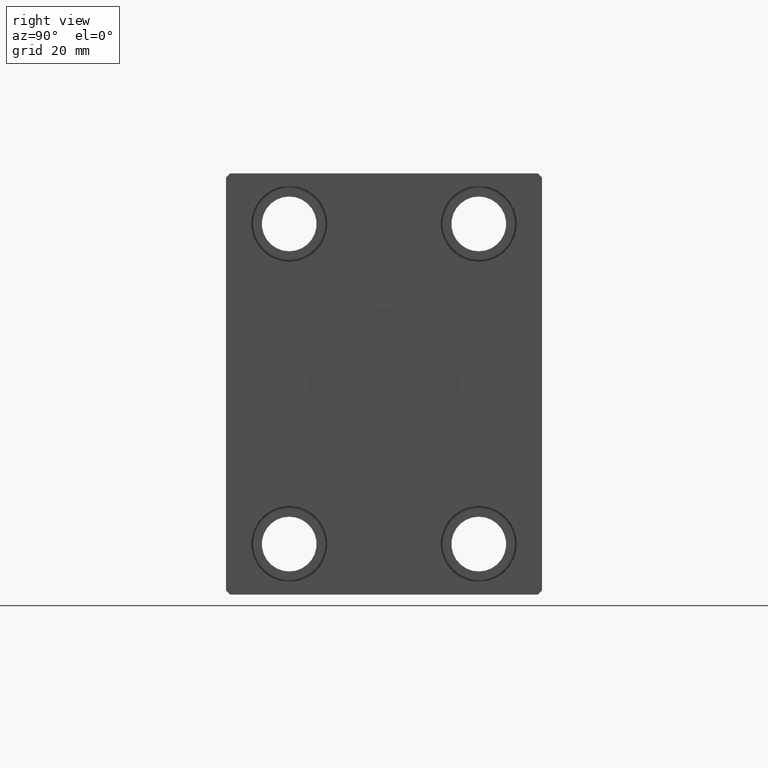
[diagram: clean part render]
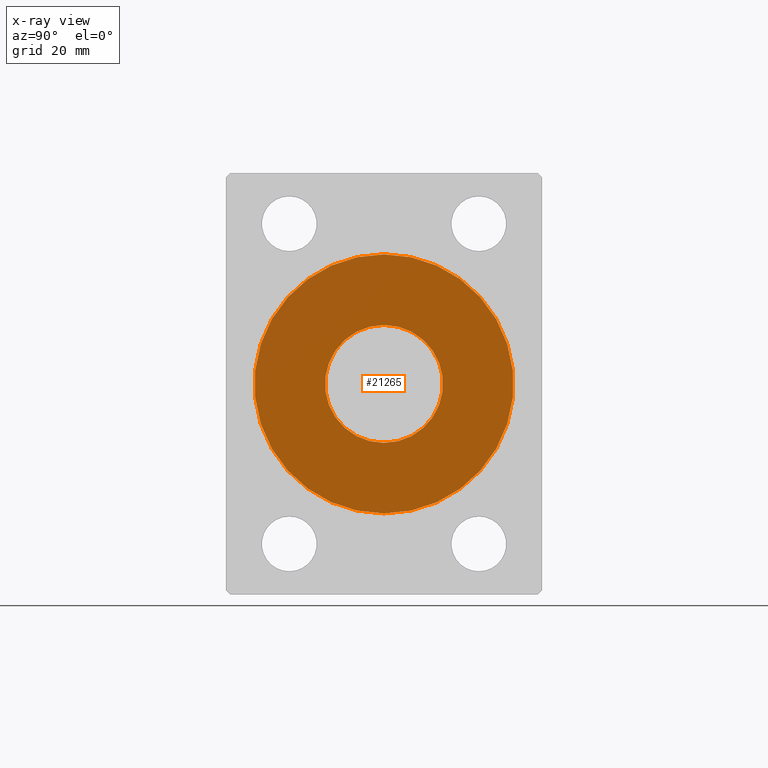
[diagram: x-ray — body ghosted, one internal face saturated and labeled with its STEP entity id]
A machine part, right view, then the same camera in x-ray: the body is ghosted and one INTERNAL B-rep face — a face not visible from any outside direction — is saturated and labeled: STEP entity #21265.
In plain terms, the highlighted planar face has unit normal (-1, 0, 0).
Its self-contained STEP definition (entity closure, byte-faithful):
#627 = CARTESIAN_POINT ( 'NONE',  ( -14.00000000000000000, 0.000000000000000000, 0.000000000000000000 ) ) ;
#1110 = FACE_OUTER_BOUND ( 'NONE', #41743, .T. ) ;
#2276 = CARTESIAN_POINT ( 'NONE',  ( 0.000000000000000000, 0.000000000000000000, 0.000000000000000000 ) ) ;
#2524 = CIRCLE ( 'NONE', #24773, 30.75000000000000355 ) ;
#3286 = DIRECTION ( 'NONE',  ( 1.000000000000000000, 0.000000000000000000, 0.000000000000000000 ) ) ;
#5090 = CARTESIAN_POINT ( 'NONE',  ( 14.00000000000000000, 1.714505518806294638E-15, 0.000000000000000000 ) ) ;
#10379 = ORIENTED_EDGE ( 'NONE', *, *, #41407, .F. ) ;
#12334 = DIRECTION ( 'NONE',  ( 1.000000000000000000, 0.000000000000000000, 0.000000000000000000 ) ) ;
#12483 = AXIS2_PLACEMENT_3D ( 'NONE', #29609, #43333, #12490 ) ;
#12490 = DIRECTION ( 'NONE',  ( 1.000000000000000000, 0.000000000000000000, 0.000000000000000000 ) ) ;
#12534 = EDGE_CURVE ( 'NONE', #17136, #15591, #21742, .T. ) ;
#15591 = VERTEX_POINT ( 'NONE', #5090 ) ;
#15627 = EDGE_CURVE ( 'NONE', #31195, #44099, #22548, .T. ) ;
#16135 = AXIS2_PLACEMENT_3D ( 'NONE', #18423, #28571, #25175 ) ;
#17136 = VERTEX_POINT ( 'NONE', #627 ) ;
#18423 = CARTESIAN_POINT ( 'NONE',  ( 0.000000000000000000, 0.000000000000000000, 0.000000000000000000 ) ) ;
#18442 = ORIENTED_EDGE ( 'NONE', *, *, #21262, .T. ) ;
#19872 = ORIENTED_EDGE ( 'NONE', *, *, #15627, .F. ) ;
#20415 = CARTESIAN_POINT ( 'NONE',  ( -30.75000000000000355, 0.000000000000000000, 0.000000000000000000 ) ) ;
#21262 = EDGE_CURVE ( 'NONE', #15591, #17136, #22603, .T. ) ;
#21265 = ADVANCED_FACE ( 'NONE', ( #1110, #26059 ), #29014, .F. ) ;
#21742 = CIRCLE ( 'NONE', #31815, 14.00000000000000000 ) ;
#22548 = CIRCLE ( 'NONE', #12483, 30.75000000000000355 ) ;
#22603 = CIRCLE ( 'NONE', #34133, 14.00000000000000000 ) ;
#22871 = CARTESIAN_POINT ( 'NONE',  ( 0.000000000000000000, 0.000000000000000000, 0.000000000000000000 ) ) ;
#23178 = DIRECTION ( 'NONE',  ( 1.000000000000000000, 0.000000000000000000, 0.000000000000000000 ) ) ;
#24330 = ORIENTED_EDGE ( 'NONE', *, *, #12534, .T. ) ;
#24642 = EDGE_LOOP ( 'NONE', ( #24330, #18442 ) ) ;
#24773 = AXIS2_PLACEMENT_3D ( 'NONE', #2276, #43679, #23178 ) ;
#25175 = DIRECTION ( 'NONE',  ( 1.000000000000000000, 0.000000000000000000, -0.000000000000000000 ) ) ;
#26059 = FACE_BOUND ( 'NONE', #24642, .T. ) ;
#28571 = DIRECTION ( 'NONE',  ( 0.000000000000000000, 0.000000000000000000, 1.000000000000000000 ) ) ;
#29014 = PLANE ( 'NONE',  #16135 ) ;
#29609 = CARTESIAN_POINT ( 'NONE',  ( 0.000000000000000000, 0.000000000000000000, 0.000000000000000000 ) ) ;
#31195 = VERTEX_POINT ( 'NONE', #20415 ) ;
#31815 = AXIS2_PLACEMENT_3D ( 'NONE', #22871, #33243, #3286 ) ;
#33243 = DIRECTION ( 'NONE',  ( -0.000000000000000000, 0.000000000000000000, 1.000000000000000000 ) ) ;
#34133 = AXIS2_PLACEMENT_3D ( 'NONE', #42735, #42963, #12334 ) ;
#41407 = EDGE_CURVE ( 'NONE', #44099, #31195, #2524, .T. ) ;
#41743 = EDGE_LOOP ( 'NONE', ( #19872, #10379 ) ) ;
#42735 = CARTESIAN_POINT ( 'NONE',  ( 0.000000000000000000, 0.000000000000000000, 0.000000000000000000 ) ) ;
#42963 = DIRECTION ( 'NONE',  ( -0.000000000000000000, 0.000000000000000000, 1.000000000000000000 ) ) ;
#43333 = DIRECTION ( 'NONE',  ( 0.000000000000000000, 0.000000000000000000, 1.000000000000000000 ) ) ;
#43679 = DIRECTION ( 'NONE',  ( 0.000000000000000000, 0.000000000000000000, 1.000000000000000000 ) ) ;
#43956 = CARTESIAN_POINT ( 'NONE',  ( 30.75000000000000355, 3.765788907378111328E-15, 0.000000000000000000 ) ) ;
#44099 = VERTEX_POINT ( 'NONE', #43956 ) ;